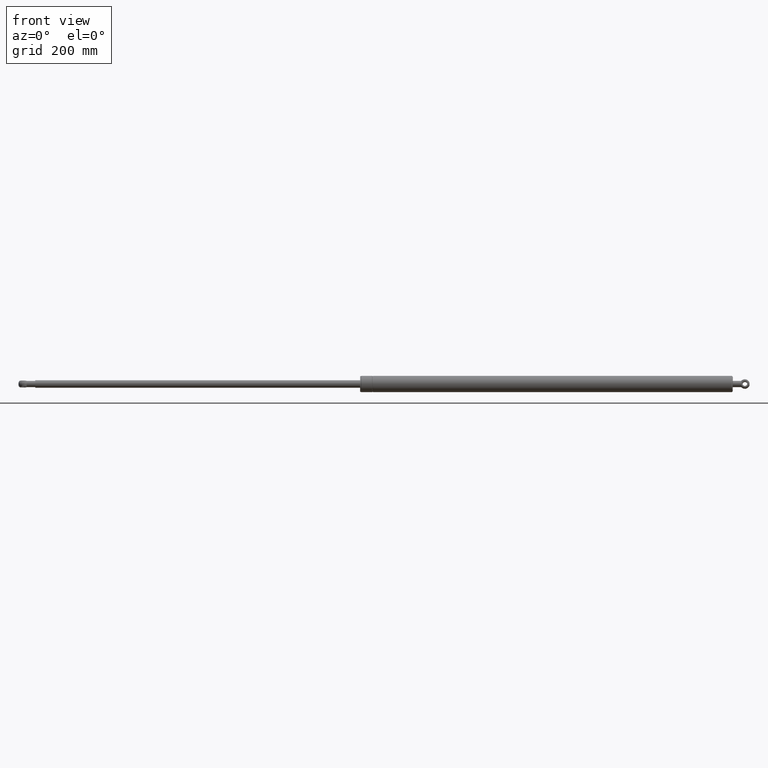
[diagram: clean part render]
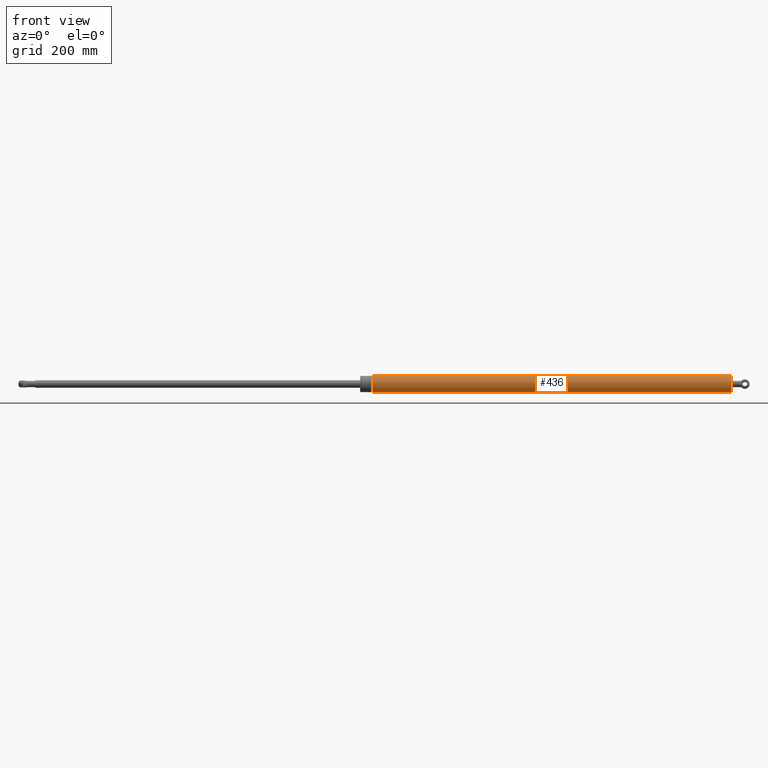
[diagram: same view with one face highlighted and labeled with its STEP entity id]
A machine part, front view. The second image highlights one B-rep face of the part: STEP entity #436.
In plain terms, the highlighted cylindrical surface (bore or boss wall) has radius 13.5 mm, axis along (-1, -0, -0).
Its self-contained STEP definition (entity closure, byte-faithful):
#88=FACE_BOUND('',#191,.T.);
#111=CYLINDRICAL_SURFACE('',#502,13.5);
#138=FACE_OUTER_BOUND('',#190,.T.);
#190=EDGE_LOOP('',(#379));
#191=EDGE_LOOP('',(#380));
#240=CIRCLE('',#491,13.5000000000001);
#246=CIRCLE('',#500,13.5);
#275=VERTEX_POINT('',#771);
#281=VERTEX_POINT('',#786);
#314=EDGE_CURVE('',#275,#275,#240,.T.);
#320=EDGE_CURVE('',#281,#281,#246,.T.);
#379=ORIENTED_EDGE('',*,*,#314,.F.);
#380=ORIENTED_EDGE('',*,*,#320,.F.);
#436=ADVANCED_FACE('',(#138,#88),#111,.T.);
#491=AXIS2_PLACEMENT_3D('',#772,#608,#609);
#500=AXIS2_PLACEMENT_3D('',#787,#626,#627);
#502=AXIS2_PLACEMENT_3D('',#789,#630,#631);
#608=DIRECTION('center_axis',(-1.,0.,0.));
#609=DIRECTION('ref_axis',(0.,0.,1.));
#626=DIRECTION('center_axis',(1.,0.,0.));
#627=DIRECTION('ref_axis',(0.,1.22464679914735E-16,-1.));
#630=DIRECTION('center_axis',(-1.,0.,0.));
#631=DIRECTION('ref_axis',(0.,0.,1.));
#771=CARTESIAN_POINT('',(21.5,0.,13.5000000000001));
#772=CARTESIAN_POINT('Origin',(21.5,0.,0.));
#786=CARTESIAN_POINT('',(617.499798224342,-3.30654635769786E-15,13.5));
#787=CARTESIAN_POINT('Origin',(617.499798224342,0.,0.));
#789=CARTESIAN_POINT('Origin',(320.499899112171,0.,0.));